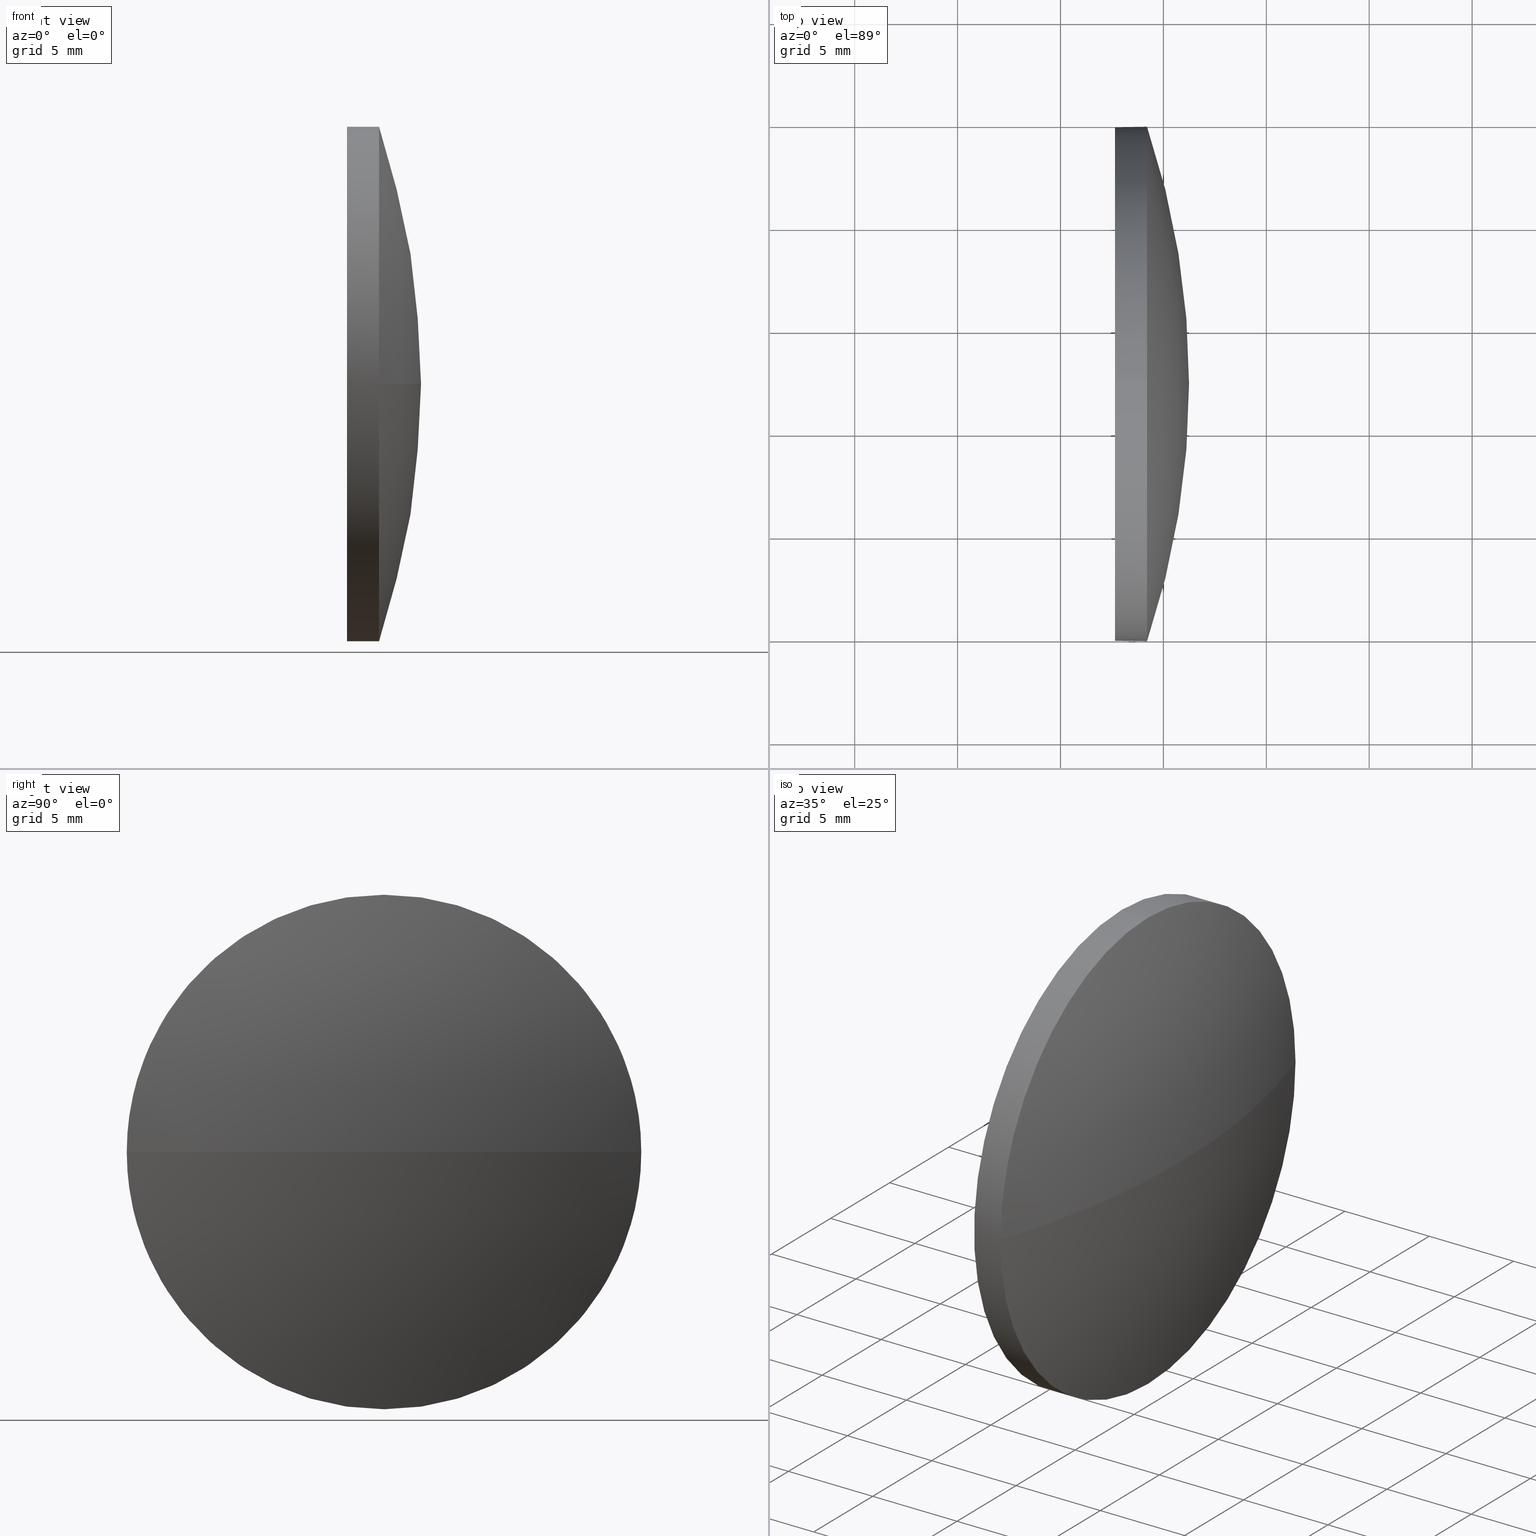
[diagram: canonical four-view strip — front | top / right | iso, engineering-drawing reading convention]
A machine part, canonical four-view strip (front | top / right | iso — engineering-drawing reading convention). The complete STEP part file that produces these views, byte-faithful:
ISO-10303-21;
HEADER;
FILE_DESCRIPTION (( 'STEP AP214' ),
    '1' );
FILE_NAME ('100214.STEP',
    '2019-05-23T08:57:33',
    ( '' ),
    ( '' ),
    'SwSTEP 2.0',
    'SolidWorks 2016',
    '' );
FILE_SCHEMA (( 'AUTOMOTIVE_DESIGN' ));
ENDSEC;

DATA;
#1 = CARTESIAN_POINT ( 'NONE',  ( 482.6463922224538700, 32.31075153967162800, 0.0000000000000000000 ) ) ;
#2 = PRODUCT_RELATED_PRODUCT_CATEGORY ( 'part', '', ( #184 ) ) ;
#3 = DIRECTION ( 'NONE',  ( -1.000000000000000000, -0.0000000000000000000, -0.0000000000000000000 ) ) ;
#4 = FACE_OUTER_BOUND ( 'NONE', #121, .T. ) ;
#5 = MECHANICAL_DESIGN_GEOMETRIC_PRESENTATION_REPRESENTATION (  '', ( #11 ), #174 ) ;
#6 = ORIENTED_EDGE ( 'NONE', *, *, #85, .T. ) ;
#7 = CIRCLE ( 'NONE', #77, 12.50000000000000400 ) ;
#8 =( NAMED_UNIT ( * ) PLANE_ANGLE_UNIT ( ) SI_UNIT ( $, .RADIAN. ) );
#9 = DIRECTION ( 'NONE',  ( -1.000000000000000000, -0.0000000000000000000, -0.0000000000000000000 ) ) ;
#10 = ORIENTED_EDGE ( 'NONE', *, *, #130, .T. ) ;
#11 = STYLED_ITEM ( 'NONE', ( #132 ), #159 ) ;
#12 = CARTESIAN_POINT ( 'NONE',  ( 482.6463922224538700, 32.31075153967162800, 0.0000000000000000000 ) ) ;
#13 = CARTESIAN_POINT ( 'NONE',  ( 480.6172846440168800, 32.31075153967162800, 0.0000000000000000000 ) ) ;
#14 = CARTESIAN_POINT ( 'NONE',  ( 482.6463922224538700, 32.31075153967162800, 12.50000000000000400 ) ) ;
#15 = CARTESIAN_POINT ( 'NONE',  ( 446.9298235950028600, 32.31075153967160700, 0.0000000000000000000 ) ) ;
#16 = CARTESIAN_POINT ( 'NONE',  ( 446.9298235950028600, 32.31075153967160700, 0.0000000000000000000 ) ) ;
#17 = VERTEX_POINT ( 'NONE', #152 ) ;
#18 = AXIS2_PLACEMENT_3D ( 'NONE', #15, #164, #67 ) ;
#19 = EDGE_LOOP ( 'NONE', ( #37, #53, #84, #10, #48 ) ) ;
#20 = CIRCLE ( 'NONE', #116, 12.50000000000000400 ) ;
#21 = PRODUCT_CONTEXT ( 'NONE', #66, 'mechanical' ) ;
#22 = APPLICATION_PROTOCOL_DEFINITION ( 'draft international standard', 'automotive_design', 1998, #66 ) ;
#23 =( NAMED_UNIT ( * ) SI_UNIT ( $, .STERADIAN. ) SOLID_ANGLE_UNIT ( ) );
#24 =( NAMED_UNIT ( * ) PLANE_ANGLE_UNIT ( ) SI_UNIT ( $, .RADIAN. ) );
#25 = CARTESIAN_POINT ( 'NONE',  ( 484.2063922224538700, 32.31075153967162800, 12.50000000000000400 ) ) ;
#26 =( GEOMETRIC_REPRESENTATION_CONTEXT ( 3 ) GLOBAL_UNCERTAINTY_ASSIGNED_CONTEXT ( ( #143 ) ) GLOBAL_UNIT_ASSIGNED_CONTEXT ( ( #58, #155, #45 ) ) REPRESENTATION_CONTEXT ( 'NONE', 'WORKASPACE' ) );
#27 = DIRECTION ( 'NONE',  ( 0.0000000000000000000, 0.0000000000000000000, 1.000000000000000000 ) ) ;
#28 = DIRECTION ( 'NONE',  ( 0.0000000000000000000, 0.0000000000000000000, 1.000000000000000000 ) ) ;
#29 = DIRECTION ( 'NONE',  ( -1.000000000000000000, -0.0000000000000000000, -0.0000000000000000000 ) ) ;
#30 = CARTESIAN_POINT ( 'NONE',  ( 446.9298235950028600, 32.31075153967160700, 0.0000000000000000000 ) ) ;
#31 = DIRECTION ( 'NONE',  ( 0.0000000000000000000, 0.0000000000000000000, 1.000000000000000000 ) ) ;
#32 = AXIS2_PLACEMENT_3D ( 'NONE', #54, #111, #27 ) ;
#33 = FACE_OUTER_BOUND ( 'NONE', #19, .T. ) ;
#34 = SHAPE_DEFINITION_REPRESENTATION ( #76, #159 ) ;
#35 = PRODUCT_DEFINITION ( 'δ֪', '', #108, #178 ) ;
#36 = UNCERTAINTY_MEASURE_WITH_UNIT (LENGTH_MEASURE( 1.000000000000000100E-005 ), #40, 'distance_accuracy_value', 'NONE');
#37 = ORIENTED_EDGE ( 'NONE', *, *, #160, .F. ) ;
#38 = CYLINDRICAL_SURFACE ( 'NONE', #50, 12.50000000000000400 ) ;
#39 = FILL_AREA_STYLE ('',( #180 ) ) ;
#40 =( LENGTH_UNIT ( ) NAMED_UNIT ( * ) SI_UNIT ( .MILLI., .METRE. ) );
#41 = ORIENTED_EDGE ( 'NONE', *, *, #176, .F. ) ;
#42 = AXIS2_PLACEMENT_3D ( 'NONE', #1, #172, #90 ) ;
#43 = ORIENTED_EDGE ( 'NONE', *, *, #160, .T. ) ;
#44 = SURFACE_STYLE_USAGE ( .BOTH. , #75 ) ;
#45 =( NAMED_UNIT ( * ) SI_UNIT ( $, .STERADIAN. ) SOLID_ANGLE_UNIT ( ) );
#46 = ORIENTED_EDGE ( 'NONE', *, *, #109, .F. ) ;
#47 = AXIS2_PLACEMENT_3D ( 'NONE', #30, #102, #114 ) ;
#48 = ORIENTED_EDGE ( 'NONE', *, *, #86, .F. ) ;
#49 = ADVANCED_FACE ( 'NONE', ( #4 ), #125, .F. ) ;
#50 = AXIS2_PLACEMENT_3D ( 'NONE', #13, #56, #28 ) ;
#51 = VERTEX_POINT ( 'NONE', #133 ) ;
#52 =( LENGTH_UNIT ( ) NAMED_UNIT ( * ) SI_UNIT ( .MILLI., .METRE. ) );
#53 = ORIENTED_EDGE ( 'NONE', *, *, #139, .T. ) ;
#54 = CARTESIAN_POINT ( 'NONE',  ( 480.6172846440168800, 32.31075153967162800, 0.0000000000000000000 ) ) ;
#55 = EDGE_CURVE ( 'NONE', #117, #124, #120, .T. ) ;
#56 = DIRECTION ( 'NONE',  ( -1.000000000000000000, -0.0000000000000000000, -0.0000000000000000000 ) ) ;
#57 = AXIS2_PLACEMENT_3D ( 'NONE', #185, #148, #179 ) ;
#58 =( LENGTH_UNIT ( ) NAMED_UNIT ( * ) SI_UNIT ( .MILLI., .METRE. ) );
#59 = CARTESIAN_POINT ( 'NONE',  ( 484.2063922224538700, 32.31075153967162800, 0.0000000000000000000 ) ) ;
#60 = SPHERICAL_SURFACE ( 'NONE', #47, 39.31656862745099100 ) ;
#61 = STYLED_ITEM ( 'NONE', ( #142 ), #112 ) ;
#62 = UNCERTAINTY_MEASURE_WITH_UNIT (LENGTH_MEASURE( 1.000000000000000100E-005 ), #52, 'distance_accuracy_value', 'NONE');
#63 = CIRCLE ( 'NONE', #150, 39.31656862745097700 ) ;
#64 = AXIS2_PLACEMENT_3D ( 'NONE', #123, #100, #89 ) ;
#65 = ORIENTED_EDGE ( 'NONE', *, *, #119, .F. ) ;
#66 = APPLICATION_CONTEXT ( 'automotive_design' ) ;
#67 = DIRECTION ( 'NONE',  ( 0.0000000000000000000, 1.000000000000000000, 1.224646799147353500E-016 ) ) ;
#68 = FACE_OUTER_BOUND ( 'NONE', #137, .T. ) ;
#69 = DIRECTION ( 'NONE',  ( 1.000000000000000000, 0.0000000000000000000, 0.0000000000000000000 ) ) ;
#70 = PRESENTATION_LAYER_ASSIGNMENT (  '', '', ( #61 ) ) ;
#71 = DIRECTION ( 'NONE',  ( -1.000000000000000000, -0.0000000000000000000, -0.0000000000000000000 ) ) ;
#72 = CARTESIAN_POINT ( 'NONE',  ( 482.6463922224538700, 32.31075153967162800, 0.0000000000000000000 ) ) ;
#73 = ORIENTED_EDGE ( 'NONE', *, *, #55, .F. ) ;
#74 = DIRECTION ( 'NONE',  ( 0.0000000000000000000, 0.0000000000000000000, 1.000000000000000000 ) ) ;
#75 = SURFACE_SIDE_STYLE ('',( #186 ) ) ;
#76 = PRODUCT_DEFINITION_SHAPE ( 'NONE', 'NONE',  #35 ) ;
#77 = AXIS2_PLACEMENT_3D ( 'NONE', #72, #71, #183 ) ;
#78 = CYLINDRICAL_SURFACE ( 'NONE', #32, 12.50000000000000400 ) ;
#79 = ORIENTED_EDGE ( 'NONE', *, *, #109, .T. ) ;
#80 = AXIS2_PLACEMENT_3D ( 'NONE', #12, #69, #168 ) ;
#81 = VERTEX_POINT ( 'NONE', #25 ) ;
#82 = DIRECTION ( 'NONE',  ( 1.000000000000000000, 0.0000000000000000000, 0.0000000000000000000 ) ) ;
#83 = SURFACE_SIDE_STYLE ('',( #141 ) ) ;
#84 = ORIENTED_EDGE ( 'NONE', *, *, #119, .T. ) ;
#85 = EDGE_CURVE ( 'NONE', #17, #51, #151, .T. ) ;
#86 = EDGE_CURVE ( 'NONE', #171, #92, #7, .T. ) ;
#87 = FILL_AREA_STYLE ('',( #110 ) ) ;
#88 = CLOSED_SHELL ( 'NONE', ( #95, #145, #161, #97, #49 ) ) ;
#89 = DIRECTION ( 'NONE',  ( 0.0000000000000000000, 0.0000000000000000000, 1.000000000000000000 ) ) ;
#90 = DIRECTION ( 'NONE',  ( 0.0000000000000000000, 0.0000000000000000000, 1.000000000000000000 ) ) ;
#91 = DIRECTION ( 'NONE',  ( -0.0000000000000000000, 0.0000000000000000000, -1.000000000000000000 ) ) ;
#92 = VERTEX_POINT ( 'NONE', #14 ) ;
#93 = ORIENTED_EDGE ( 'NONE', *, *, #139, .F. ) ;
#94 = AXIS2_PLACEMENT_3D ( 'NONE', #59, #101, #74 ) ;
#95 = ADVANCED_FACE ( 'NONE', ( #146 ), #78, .T. ) ;
#96 = SURFACE_STYLE_USAGE ( .BOTH. , #83 ) ;
#97 = ADVANCED_FACE ( 'NONE', ( #33 ), #38, .T. ) ;
#98 = COLOUR_RGB ( '',1.000000000000000000, 1.000000000000000000, 1.000000000000000000 ) ;
#99 = MECHANICAL_DESIGN_GEOMETRIC_PRESENTATION_REPRESENTATION (  '', ( #61 ), #26 ) ;
#100 = DIRECTION ( 'NONE',  ( -1.000000000000000000, -0.0000000000000000000, -0.0000000000000000000 ) ) ;
#101 = DIRECTION ( 'NONE',  ( -1.000000000000000000, -0.0000000000000000000, -0.0000000000000000000 ) ) ;
#102 = DIRECTION ( 'NONE',  ( -0.0000000000000000000, 0.0000000000000000000, -1.000000000000000000 ) ) ;
#103 = CIRCLE ( 'NONE', #147, 12.50000000000000400 ) ;
#104 = AXIS2_PLACEMENT_3D ( 'NONE', #16, #91, #138 ) ;
#105 = VECTOR ( 'NONE', #3, 1000.000000000000000 ) ;
#106 = APPLICATION_CONTEXT ( 'automotive_design' ) ;
#107 = CARTESIAN_POINT ( 'NONE',  ( 484.2063922224538700, 32.31075153967162800, 0.0000000000000000000 ) ) ;
#108 = PRODUCT_DEFINITION_FORMATION_WITH_SPECIFIED_SOURCE ( '�κ�', '', #184, .NOT_KNOWN. ) ;
#109 = EDGE_CURVE ( 'NONE', #92, #171, #144, .T. ) ;
#110 = FILL_AREA_STYLE_COLOUR ( '', #98 ) ;
#111 = DIRECTION ( 'NONE',  ( -1.000000000000000000, -0.0000000000000000000, -0.0000000000000000000 ) ) ;
#112 = MANIFOLD_SOLID_BREP ( '��ת1', #88 ) ;
#113 = CARTESIAN_POINT ( 'NONE',  ( 446.9298235950028600, 32.31075153967160700, 0.0000000000000000000 ) ) ;
#114 = DIRECTION ( 'NONE',  ( 0.0000000000000000000, 1.000000000000000000, 0.0000000000000000000 ) ) ;
#115 = ORIENTED_EDGE ( 'NONE', *, *, #165, .F. ) ;
#116 = AXIS2_PLACEMENT_3D ( 'NONE', #170, #29, #31 ) ;
#117 = VERTEX_POINT ( 'NONE', #135 ) ;
#118 = ORIENTED_EDGE ( 'NONE', *, *, #55, .T. ) ;
#119 = EDGE_CURVE ( 'NONE', #51, #81, #20, .T. ) ;
#120 = CIRCLE ( 'NONE', #64, 12.50000000000000400 ) ;
#121 = EDGE_LOOP ( 'NONE', ( #79, #156 ) ) ;
#122 =( NAMED_UNIT ( * ) SI_UNIT ( $, .STERADIAN. ) SOLID_ANGLE_UNIT ( ) );
#123 = CARTESIAN_POINT ( 'NONE',  ( 484.2063922224538700, 32.31075153967162800, 0.0000000000000000000 ) ) ;
#124 = VERTEX_POINT ( 'NONE', #153 ) ;
#125 = PLANE ( 'NONE',  #80 ) ;
#126 = CARTESIAN_POINT ( 'NONE',  ( 482.6463922224538700, 32.31075153967162800, -12.50000000000000400 ) ) ;
#127 = DIRECTION ( 'NONE',  ( -0.0000000000000000000, 0.0000000000000000000, 1.000000000000000000 ) ) ;
#128 = VECTOR ( 'NONE', #136, 1000.000000000000000 ) ;
#129 = ORIENTED_EDGE ( 'NONE', *, *, #165, .T. ) ;
#130 = EDGE_CURVE ( 'NONE', #81, #92, #166, .T. ) ;
#131 = CIRCLE ( 'NONE', #94, 12.50000000000000400 ) ;
#132 = PRESENTATION_STYLE_ASSIGNMENT (( #96 ) ) ;
#133 = CARTESIAN_POINT ( 'NONE',  ( 484.2063922224538700, 19.81075153967161000, -1.530808498934190300E-015 ) ) ;
#134 = LINE ( 'NONE', #167, #105 ) ;
#135 = CARTESIAN_POINT ( 'NONE',  ( 484.2063922224538700, 44.81075153967162100, 0.0000000000000000000 ) ) ;
#136 = DIRECTION ( 'NONE',  ( -1.000000000000000000, -0.0000000000000000000, -0.0000000000000000000 ) ) ;
#137 = EDGE_LOOP ( 'NONE', ( #149, #129, #41, #65 ) ) ;
#138 = DIRECTION ( 'NONE',  ( 0.0000000000000000000, 1.000000000000000000, 0.0000000000000000000 ) ) ;
#139 = EDGE_CURVE ( 'NONE', #124, #51, #131, .T. ) ;
#140 = SPHERICAL_SURFACE ( 'NONE', #104, 39.31656862745099100 ) ;
#141 = SURFACE_STYLE_FILL_AREA ( #39 ) ;
#142 = PRESENTATION_STYLE_ASSIGNMENT (( #44 ) ) ;
#143 = UNCERTAINTY_MEASURE_WITH_UNIT (LENGTH_MEASURE( 1.000000000000000100E-005 ), #58, 'distance_accuracy_value', 'NONE');
#144 = CIRCLE ( 'NONE', #42, 12.50000000000000400 ) ;
#145 = ADVANCED_FACE ( 'NONE', ( #173 ), #140, .T. ) ;
#146 = FACE_OUTER_BOUND ( 'NONE', #157, .T. ) ;
#147 = AXIS2_PLACEMENT_3D ( 'NONE', #107, #9, #181 ) ;
#148 = DIRECTION ( 'NONE',  ( 0.0000000000000000000, 0.0000000000000000000, 1.000000000000000000 ) ) ;
#149 = ORIENTED_EDGE ( 'NONE', *, *, #85, .F. ) ;
#150 = AXIS2_PLACEMENT_3D ( 'NONE', #113, #127, #82 ) ;
#151 = CIRCLE ( 'NONE', #18, 39.31656862745098400 ) ;
#152 = CARTESIAN_POINT ( 'NONE',  ( 486.2463922224538400, 32.31075153967160700, 0.0000000000000000000 ) ) ;
#153 = CARTESIAN_POINT ( 'NONE',  ( 484.2063922224538700, 32.31075153967162800, -12.50000000000000400 ) ) ;
#154 = CARTESIAN_POINT ( 'NONE',  ( 480.6172846440168800, 32.31075153967162800, 12.50000000000000400 ) ) ;
#155 =( NAMED_UNIT ( * ) PLANE_ANGLE_UNIT ( ) SI_UNIT ( $, .RADIAN. ) );
#156 = ORIENTED_EDGE ( 'NONE', *, *, #86, .T. ) ;
#157 = EDGE_LOOP ( 'NONE', ( #118, #43, #46, #162, #175 ) ) ;
#158 =( GEOMETRIC_REPRESENTATION_CONTEXT ( 3 ) GLOBAL_UNCERTAINTY_ASSIGNED_CONTEXT ( ( #36 ) ) GLOBAL_UNIT_ASSIGNED_CONTEXT ( ( #40, #8, #23 ) ) REPRESENTATION_CONTEXT ( 'NONE', 'WORKASPACE' ) );
#159 = ADVANCED_BREP_SHAPE_REPRESENTATION ( '100214', ( #112, #57 ), #158 ) ;
#160 = EDGE_CURVE ( 'NONE', #124, #171, #134, .T. ) ;
#161 = ADVANCED_FACE ( 'NONE', ( #68 ), #60, .T. ) ;
#162 = ORIENTED_EDGE ( 'NONE', *, *, #130, .F. ) ;
#163 = APPLICATION_PROTOCOL_DEFINITION ( 'draft international standard', 'automotive_design', 1998, #106 ) ;
#164 = DIRECTION ( 'NONE',  ( 0.0000000000000000000, 1.224646799147353200E-016, -1.000000000000000000 ) ) ;
#165 = EDGE_CURVE ( 'NONE', #17, #117, #63, .T. ) ;
#166 = LINE ( 'NONE', #154, #128 ) ;
#167 = CARTESIAN_POINT ( 'NONE',  ( 480.6172846440168800, 32.31075153967162800, -12.50000000000000400 ) ) ;
#168 = DIRECTION ( 'NONE',  ( 0.0000000000000000000, 0.0000000000000000000, -1.000000000000000000 ) ) ;
#169 = PRESENTATION_LAYER_ASSIGNMENT (  '', '', ( #11 ) ) ;
#170 = CARTESIAN_POINT ( 'NONE',  ( 484.2063922224538700, 32.31075153967162800, 0.0000000000000000000 ) ) ;
#171 = VERTEX_POINT ( 'NONE', #126 ) ;
#172 = DIRECTION ( 'NONE',  ( -1.000000000000000000, -0.0000000000000000000, -0.0000000000000000000 ) ) ;
#173 = FACE_OUTER_BOUND ( 'NONE', #182, .T. ) ;
#174 =( GEOMETRIC_REPRESENTATION_CONTEXT ( 3 ) GLOBAL_UNCERTAINTY_ASSIGNED_CONTEXT ( ( #62 ) ) GLOBAL_UNIT_ASSIGNED_CONTEXT ( ( #52, #24, #122 ) ) REPRESENTATION_CONTEXT ( 'NONE', 'WORKASPACE' ) );
#175 = ORIENTED_EDGE ( 'NONE', *, *, #176, .T. ) ;
#176 = EDGE_CURVE ( 'NONE', #81, #117, #103, .T. ) ;
#177 = COLOUR_RGB ( '',1.000000000000000000, 1.000000000000000000, 1.000000000000000000 ) ;
#178 = PRODUCT_DEFINITION_CONTEXT ( 'detailed design', #106, 'design' ) ;
#179 = DIRECTION ( 'NONE',  ( 1.000000000000000000, 0.0000000000000000000, 0.0000000000000000000 ) ) ;
#180 = FILL_AREA_STYLE_COLOUR ( '', #177 ) ;
#181 = DIRECTION ( 'NONE',  ( 0.0000000000000000000, 0.0000000000000000000, 1.000000000000000000 ) ) ;
#182 = EDGE_LOOP ( 'NONE', ( #115, #6, #93, #73 ) ) ;
#183 = DIRECTION ( 'NONE',  ( 0.0000000000000000000, 0.0000000000000000000, 1.000000000000000000 ) ) ;
#184 = PRODUCT ( '100214', '100214', '', ( #21 ) ) ;
#185 = CARTESIAN_POINT ( 'NONE',  ( 0.0000000000000000000, 0.0000000000000000000, 0.0000000000000000000 ) ) ;
#186 = SURFACE_STYLE_FILL_AREA ( #87 ) ;
ENDSEC;
END-ISO-10303-21;
